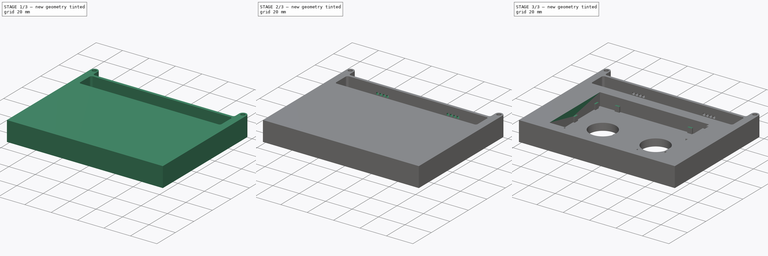
[diagram: build sequence overview — one tinted view per stage of 3, left to right]
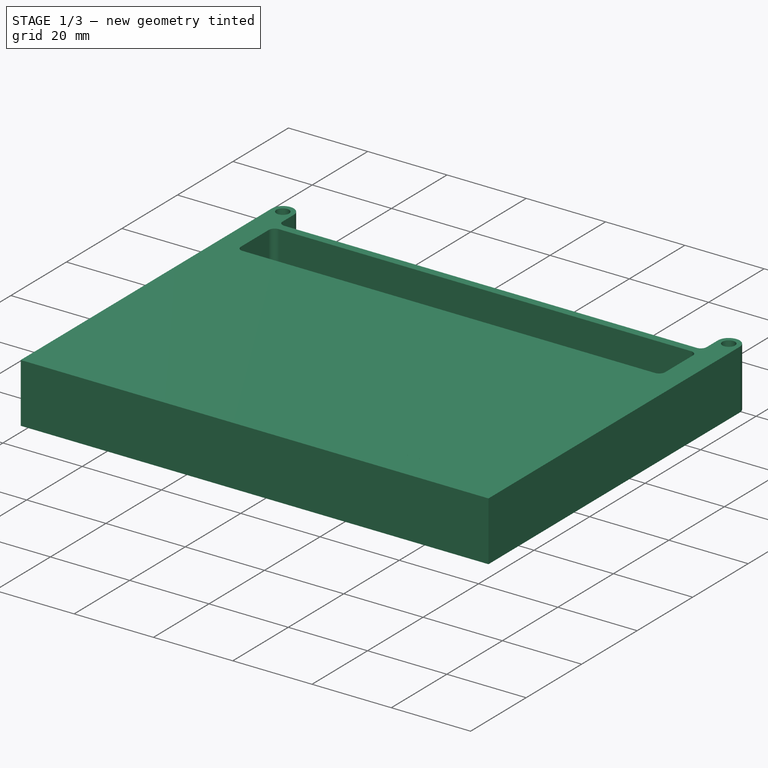
[diagram: stage 1 of 3 — iso view after this stage's code; geometry added in this stage tinted green]
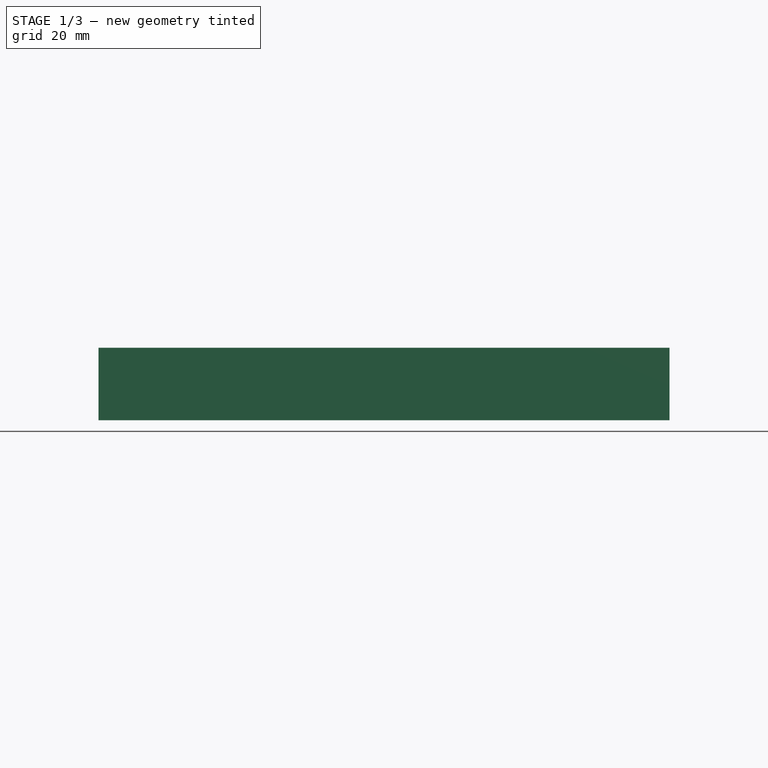
[diagram: stage 1 of 3 — front view after this stage's code; geometry added in this stage tinted green]
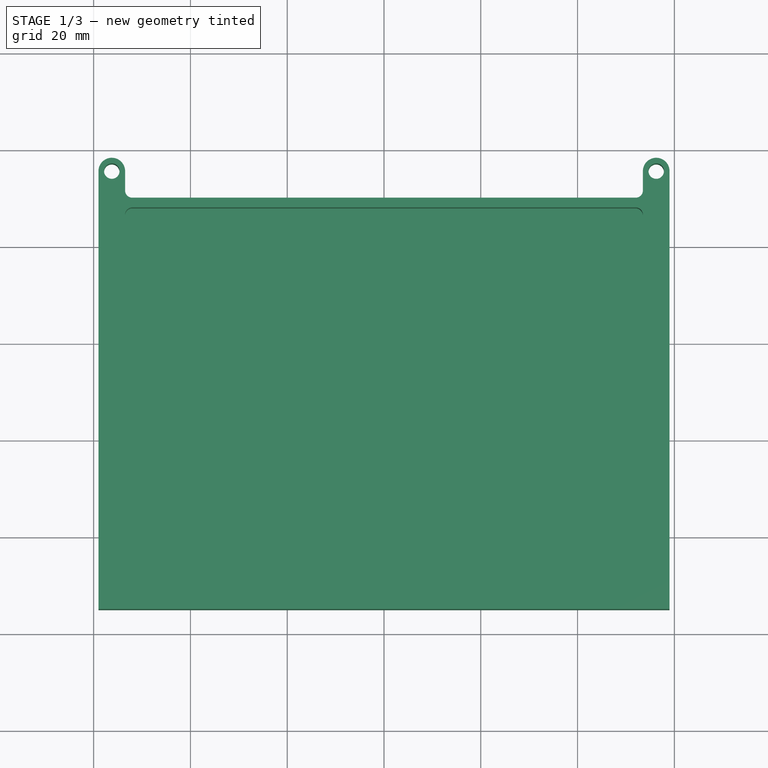
[diagram: stage 1 of 3 — top view after this stage's code; geometry added in this stage tinted green]
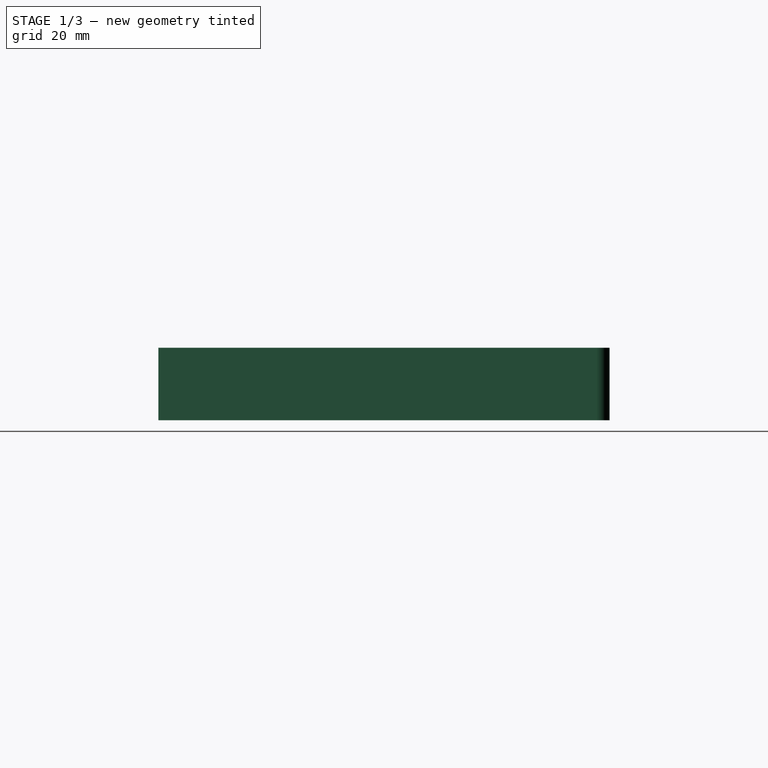
[diagram: stage 1 of 3 — right view after this stage's code; geometry added in this stage tinted green]
FCSTD DOCUMENT  (FreeCAD 0.18R15969 (Git))
Label: eternal_magnet_alignment_jig_3
License: All rights reserved
LicenseURL: http://en.wikipedia.org/wiki/All_rights_reserved
objects: Sketcher::SketchObject×7, PartDesign::Pocket×5, PartDesign::Pad×2, PartDesign::Body×2, PartDesign::Boolean×1
note: 24 computed .brp shape members not serialized (recipe doc carries the construction recipe); baked Part::Feature solids carry a one-line shape summary decoded from their .brp

FEATURE [Sketcher::SketchObject] Sketch
  MapMode = 5
  Support = -> [XY_Plane]
  sketch-geometry (21):
    g0: LineSegment StartX=-52 StartY=50 StartZ=0 EndX=52 EndY=50 EndZ=0
    g1: LineSegment StartX=59 StartY=-35 StartZ=0 EndX=-59 EndY=-35 EndZ=0
    g2: LineSegment [constr] StartX=-52 StartY=51.5 StartZ=0 EndX=0 EndY=0 EndZ=0
    g3: LineSegment [constr] StartX=52 StartY=51.5 StartZ=0 EndX=0 EndY=0 EndZ=0
    g4: Circle CenterX=-56.25 CenterY=55.5 CenterZ=0 NormalX=0 NormalY=0 NormalZ=1 AngleXU=0 Radius=1.6
    g5: Circle CenterX=56.25 CenterY=55.5 CenterZ=0 NormalX=0 NormalY=0 NormalZ=1 AngleXU=0 Radius=1.6
    g6: ArcOfCircle CenterX=-52 CenterY=51.5 CenterZ=0 NormalX=0 NormalY=0 NormalZ=1 AngleXU=0 Radius=1.5 StartAngle=3.14159 EndAngle=4.71239
    g7: ArcOfCircle CenterX=52 CenterY=51.5 CenterZ=0 NormalX=0 NormalY=0 NormalZ=1 AngleXU=0 Radius=1.5 StartAngle=4.71239 EndAngle=6.28319
    g8: LineSegment StartX=-53.5 StartY=51.5 StartZ=0 EndX=-53.5 EndY=55.5 EndZ=0
    g9: LineSegment StartX=-59 StartY=55.5 StartZ=0 EndX=-59 EndY=-35 EndZ=0
    g10: ArcOfCircle CenterX=-56.25 CenterY=55.5 CenterZ=0 NormalX=0 NormalY=0 NormalZ=1 AngleXU=0 Radius=2.75 StartAngle=1e-16 EndAngle=3.14159
    g11: LineSegment StartX=53.5 StartY=51.5 StartZ=0 EndX=53.5 EndY=55.5 EndZ=0
    g12: LineSegment StartX=59 StartY=55.5 StartZ=0 EndX=59 EndY=-35 EndZ=0
    g13: ArcOfCircle CenterX=56.25 CenterY=55.5 CenterZ=0 NormalX=0 NormalY=0 NormalZ=1 AngleXU=0 Radius=2.75 StartAngle=1.3e-15 EndAngle=3.14159
    g14: LineSegment [constr] StartX=-41.25 StartY=-27.25 StartZ=0 EndX=41.25 EndY=-27.25 EndZ=0
    g15: LineSegment [constr] StartX=41.25 StartY=-27.25 StartZ=0 EndX=41.25 EndY=27.25 EndZ=0
    g16: LineSegment [constr] StartX=41.25 StartY=27.25 StartZ=0 EndX=-41.25 EndY=27.25 EndZ=0
    g17: LineSegment [constr] StartX=-41.25 StartY=27.25 StartZ=0 EndX=-41.25 EndY=-27.25 EndZ=0
    g18: LineSegment [constr] StartX=-41.25 StartY=27.25 StartZ=0 EndX=0 EndY=-3.6e-15 EndZ=0
    g19: LineSegment [constr] StartX=0 StartY=0 StartZ=0 EndX=41.25 EndY=27.25 EndZ=0
    g20: LineSegment [constr] StartX=0 StartY=0 StartZ=0 EndX=-41.25 EndY=-27.25 EndZ=0
  constraints (52):
    c: Horizontal(g0)
    c: Horizontal(g1)
    c: Coincident(g2,g-1)
    c: Coincident(g3,g-1)
    c: Equal(g2,g3)
    c: Radius(g4) = 1.6
    c: Equal(g4,g5)
    c: Tangent(g0,g6) = -1.5708
    c: Tangent(g0,g7) = -1.5708
    c: Coincident(g2,g6)
    c: Coincident(g3,g7)
    c: Radius(g7) = 1.5
    c: Equal(g7,g6)
    c: DistanceY(g0,g4) = 5.5
    c: Vertical(g8)
    c: Coincident(g9,g1)
    c: Vertical(g9)
    c: Coincident(g10,g4)
    c: Tangent(g10,g8) = -1.5708
    c: Tangent(g10,g9) = -1.5708
    c: DistanceX(g6,g7) = 107
    c: DistanceX(g9,g8) = 5.5
    c: Vertical(g11)
    c: Coincident(g12,g1)
    c: Vertical(g12)
    c: Coincident(g13,g5)
    c: Tangent(g13,g11) = 1.5708
    c: Tangent(g13,g12) = 1.5708
    c: Equal(g13,g10)
    c: Tangent(g8,g6) = 1.5708
    c: Tangent(g11,g7) = -1.5708
    c: Equal(g11,g8)
    c: Coincident(g14,g15)
    c: Coincident(g15,g16)
    c: Coincident(g16,g17)
    c: Coincident(g17,g14)
    c: Horizontal(g14)
    c: Horizontal(g16)
    c: Vertical(g15)
    c: Vertical(g17)
    c: DistanceY(g17,g17) = 54.5
    c: DistanceX(g16,g16) = 82.5
    c: Coincident(g18,g16)
    c: Coincident(g18,g-1)
    c: Coincident(g19,g-1)
    c: Coincident(g19,g15)
    c: Coincident(g20,g-1)
    c: Coincident(g20,g14)
    c: Equal(g18,g19)
    c: Equal(g19,g20)
    c: DistanceY(g1,g-1) = 35
    c: DistanceY(g-1,g0) = 50
FEATURE [PartDesign::Pad] Pad
  Length = 15
  Length2 = 100
  Profile = -> Sketch
  Refine = true
  Reversed = true
  Type = 0
FEATURE [Sketcher::SketchObject] Sketch001
  ExternalGeometry = -> [Pad]
  MapMode = 5
  Support = -> [Pad]
  sketch-geometry (10):
    g0: LineSegment StartX=-52 StartY=48 StartZ=0 EndX=52 EndY=48 EndZ=0
    g1: LineSegment StartX=53.5 StartY=46.5 StartZ=0 EndX=53.5 EndY=36.5 EndZ=0
    g2: LineSegment StartX=52 StartY=35 StartZ=0 EndX=-52 EndY=35 EndZ=0
    g3: LineSegment StartX=-53.5 StartY=36.5 StartZ=0 EndX=-53.5 EndY=46.5 EndZ=0
    g4: ArcOfCircle CenterX=-52 CenterY=46.5 CenterZ=0 NormalX=0 NormalY=0 NormalZ=1 AngleXU=0 Radius=1.5 StartAngle=1.5708 EndAngle=3.14159
    g5: ArcOfCircle CenterX=52 CenterY=46.5 CenterZ=0 NormalX=0 NormalY=0 NormalZ=1 AngleXU=0 Radius=1.5 StartAngle=-9e-16 EndAngle=1.5708
    g6: ArcOfCircle CenterX=52 CenterY=36.5 CenterZ=0 NormalX=0 NormalY=0 NormalZ=1 AngleXU=0 Radius=1.5 StartAngle=4.71239 EndAngle=6.28319
    g7: ArcOfCircle CenterX=-52 CenterY=36.5 CenterZ=0 NormalX=0 NormalY=0 NormalZ=1 AngleXU=0 Radius=1.5 StartAngle=3.14159 EndAngle=4.71239
    g8: LineSegment [constr] StartX=-52 StartY=50 StartZ=0 EndX=-52 EndY=48 EndZ=0
    g9: LineSegment [constr] StartX=52 StartY=50 StartZ=0 EndX=52 EndY=48 EndZ=0
  constraints (24):
    c: Horizontal(g2)
    c: Vertical(g1)
    c: Vertical(g3)
    c: Tangent(g3,g4) = 1.5708
    c: Tangent(g0,g4) = 1.5708
    c: Tangent(g0,g5) = 1.5708
    c: Tangent(g1,g5) = 1.5708
    c: Tangent(g1,g6) = 1.5708
    c: Tangent(g2,g6) = 1.5708
    c: Tangent(g2,g7) = 1.5708
    c: Tangent(g3,g7) = 1.5708
    c: Radius(g7) = 1.5
    c: Equal(g7,g4)
    c: Equal(g7,g5)
    c: Equal(g7,g6)
    c: Coincident(g8,g-3)
    c: Coincident(g8,g0)
    c: Coincident(g9,g-3)
    c: Coincident(g9,g0)
    c: Equal(g8,g9)
    c: Vertical(g8)
    c: Vertical(g9)
    c: DistanceY(g8,g8) = 2
    c: DistanceY(g7,g4) = 10
FEATURE [PartDesign::Pocket] Pocket
  BaseFeature = -> Pad
  Length = 13
  Length2 = 100
  Profile = -> Sketch001
  Refine = true
  Type = 0
FEATURE [Sketcher::SketchObject] Sketch006
  MapMode = 5
  Support = -> [XY_Plane001]
  sketch-geometry (85):
    g0: LineSegment [constr] StartX=-41.25 StartY=-27.25 StartZ=0 EndX=41.25 EndY=-27.25 EndZ=0
    g1: LineSegment [constr] StartX=41.25 StartY=-27.25 StartZ=0 EndX=41.25 EndY=27.25 EndZ=0
    g2: LineSegment [constr] StartX=41.25 StartY=27.25 StartZ=0 EndX=-41.25 EndY=27.25 EndZ=0
    g3: LineSegment [constr] StartX=-41.25 StartY=27.25 StartZ=0 EndX=-41.25 EndY=-27.25 EndZ=0
    g4: LineSegment [constr] StartX=-41.25 StartY=27.25 StartZ=0 EndX=0 EndY=0 EndZ=0
    g5: LineSegment [constr] StartX=0 StartY=0 StartZ=0 EndX=41.25 EndY=27.25 EndZ=0
    g6: LineSegment [constr] StartX=0 StartY=0 StartZ=0 EndX=-41.25 EndY=-27.25 EndZ=0
    g7: LineSegment StartX=-41.25 StartY=27.25 StartZ=0 EndX=-29.1 EndY=27.25 EndZ=0
    g8: LineSegment StartX=-29.1 StartY=27.25 StartZ=0 EndX=-29.3 EndY=26.05 EndZ=0
    g9: LineSegment StartX=-29.3 StartY=26.05 StartZ=0 EndX=-25.7 EndY=26.05 EndZ=0
    g10: LineSegment StartX=-25.7 StartY=26.05 StartZ=0 EndX=-25.9 EndY=27.25 EndZ=0
    g11: LineSegment StartX=-25.9 StartY=27.25 StartZ=0 EndX=25.9 EndY=27.25 EndZ=0
    g12: LineSegment StartX=25.9 StartY=27.25 StartZ=0 EndX=25.7 EndY=26.05 EndZ=0
    g13: LineSegment StartX=25.7 StartY=26.05 StartZ=0 EndX=29.3 EndY=26.05 EndZ=0
    g14: LineSegment StartX=29.3 StartY=26.05 StartZ=0 EndX=29.1 EndY=27.25 EndZ=0
    g15: LineSegment StartX=29.1 StartY=27.25 StartZ=0 EndX=41.25 EndY=27.25 EndZ=0
    g16: LineSegment StartX=-41.25 StartY=27.25 StartZ=0 EndX=-41.25 EndY=24.1 EndZ=0
    g17: LineSegment StartX=-41.25 StartY=24.1 StartZ=0 EndX=-40.05 EndY=24.3 EndZ=0
    g18: LineSegment StartX=-40.05 StartY=24.3 StartZ=0 EndX=-40.05 EndY=20.7 EndZ=0
    g19: LineSegment StartX=-40.05 StartY=20.7 StartZ=0 EndX=-41.25 EndY=20.9 EndZ=0
    g20: LineSegment StartX=-41.25 StartY=20.9 StartZ=0 EndX=-41.25 EndY=1.6 EndZ=0
    g21: LineSegment StartX=-41.25 StartY=1.6 StartZ=0 EndX=-40.05 EndY=1.8 EndZ=0
    g22: LineSegment StartX=-40.05 StartY=1.8 StartZ=0 EndX=-40.05 EndY=-1.8 EndZ=0
    g23: LineSegment StartX=-40.05 StartY=-1.8 StartZ=0 EndX=-41.25 EndY=-1.6 EndZ=0
    g24: LineSegment [constr] StartX=-40.05 StartY=-1.8 StartZ=0 EndX=-41.25 EndY=1.6 EndZ=0
    g25: LineSegment [constr] StartX=-40.05 StartY=20.7 StartZ=0 EndX=-41.25 EndY=24.1 EndZ=0
    g26: LineSegment [constr] StartX=-29.3 StartY=26.05 StartZ=0 EndX=-25.9 EndY=27.25 EndZ=0
    g27: LineSegment [constr] StartX=25.7 StartY=26.05 StartZ=0 EndX=29.1 EndY=27.25 EndZ=0
    g28: LineSegment StartX=-41.25 StartY=-1.6 StartZ=0 EndX=-41.25 EndY=-20.9 EndZ=0
    g29: LineSegment StartX=-41.25 StartY=-20.9 StartZ=0 EndX=-40.05 EndY=-20.7 EndZ=0
    g30: LineSegment StartX=-40.05 StartY=-20.7 StartZ=0 EndX=-40.05 EndY=-24.3 EndZ=0
    g31: LineSegment StartX=-40.05 StartY=-24.3 StartZ=0 EndX=-41.25 EndY=-24.1 EndZ=0
    g32: LineSegment StartX=-41.25 StartY=-24.1 StartZ=0 EndX=-41.25 EndY=-27.25 EndZ=0
    g33: LineSegment [constr] StartX=-41.25 StartY=-20.9 StartZ=0 EndX=-40.05 EndY=-24.3 EndZ=0
    g34: LineSegment [constr] StartX=0 StartY=0 StartZ=0 EndX=-40.05 EndY=1.8 EndZ=0
    g35: LineSegment [constr] StartX=0 StartY=0 StartZ=0 EndX=-40.05 EndY=-1.8 EndZ=0
    g36: LineSegment [constr] StartX=-40.05 StartY=20.7 StartZ=0 EndX=0 EndY=22.5 EndZ=0
    g37: LineSegment [constr] StartX=0 StartY=22.5 StartZ=0 EndX=-40.05 EndY=24.3 EndZ=0
    g38: LineSegment [constr] StartX=-40.05 StartY=-20.7 StartZ=0 EndX=0 EndY=-22.5 EndZ=0
    g39: LineSegment [constr] StartX=-40.05 StartY=-24.3 StartZ=0 EndX=0 EndY=-22.5 EndZ=0
    g40: LineSegment [constr] StartX=0 StartY=-22.5 StartZ=0 EndX=0 EndY=0 EndZ=0
    g41: LineSegment [constr] StartX=0 StartY=0 StartZ=0 EndX=0 EndY=22.5 EndZ=0
    g42: LineSegment [constr] StartX=-29.3 StartY=26.05 StartZ=0 EndX=-27.5 EndY=-27.25 EndZ=0
    g43: LineSegment [constr] StartX=-27.5 StartY=-27.25 StartZ=0 EndX=-25.7 EndY=26.05 EndZ=0
    g44: LineSegment [constr] StartX=29.3 StartY=26.05 StartZ=0 EndX=27.5 EndY=-27.25 EndZ=0
    g45: LineSegment [constr] StartX=25.7 StartY=26.05 StartZ=0 EndX=27.5 EndY=-27.25 EndZ=0
    g46: LineSegment [constr] StartX=-27.5 StartY=-27.25 StartZ=0 EndX=0 EndY=0 EndZ=0
    g47: LineSegment [constr] StartX=0 StartY=0 StartZ=0 EndX=27.5 EndY=-27.25 EndZ=0
    g48: LineSegment StartX=41.25 StartY=27.25 StartZ=0 EndX=41.25 EndY=24.35 EndZ=0
    g49: LineSegment StartX=41.25 StartY=24.35 StartZ=0 EndX=42.85 EndY=24.6 EndZ=0
    g50: LineSegment StartX=42.85 StartY=24.6 StartZ=0 EndX=42.85 EndY=20.4 EndZ=0
    g51: LineSegment StartX=42.85 StartY=20.4 StartZ=0 EndX=41.25 EndY=20.65 EndZ=0
    g52: LineSegment StartX=41.25 StartY=20.65 StartZ=0 EndX=41.25 EndY=1.85 EndZ=0
    g53: LineSegment StartX=41.25 StartY=1.85 StartZ=0 EndX=42.85 EndY=2.1 EndZ=0
    g54: LineSegment StartX=42.85 StartY=2.1 StartZ=0 EndX=42.85 EndY=-2.1 EndZ=0
    g55: LineSegment StartX=42.85 StartY=-2.1 StartZ=0 EndX=41.25 EndY=-1.85 EndZ=0
    g56: LineSegment StartX=41.25 StartY=-1.85 StartZ=0 EndX=41.25 EndY=-20.65 EndZ=0
    g57: LineSegment StartX=41.25 StartY=-20.65 StartZ=0 EndX=42.85 EndY=-20.4 EndZ=0
    g58: LineSegment StartX=42.85 StartY=-20.4 StartZ=0 EndX=42.85 EndY=-24.6 EndZ=0
    g59: LineSegment StartX=42.85 StartY=-24.6 StartZ=0 EndX=41.25 EndY=-24.35 EndZ=0
    g60: LineSegment StartX=41.25 StartY=-24.35 StartZ=0 EndX=41.25 EndY=-27.25 EndZ=0
    g61: LineSegment StartX=-41.25 StartY=-27.25 StartZ=0 EndX=-29.35 EndY=-27.25 EndZ=0
    g62: LineSegment StartX=-29.35 StartY=-27.25 StartZ=0 EndX=-29.6 EndY=-28.85 EndZ=0
    g63: LineSegment StartX=-29.6 StartY=-28.85 StartZ=0 EndX=-25.4 EndY=-28.85 EndZ=0
    g64: LineSegment StartX=-25.4 StartY=-28.85 StartZ=0 EndX=-25.65 EndY=-27.25 EndZ=0
    g65: LineSegment StartX=-25.65 StartY=-27.25 StartZ=0 EndX=25.65 EndY=-27.25 EndZ=0
    g66: LineSegment StartX=25.65 StartY=-27.25 StartZ=0 EndX=25.4 EndY=-28.85 EndZ=0
    g67: LineSegment StartX=25.4 StartY=-28.85 StartZ=0 EndX=29.6 EndY=-28.85 EndZ=0
    g68: LineSegment StartX=29.6 StartY=-28.85 StartZ=0 EndX=29.35 EndY=-27.25 EndZ=0
    g69: LineSegment StartX=29.35 StartY=-27.25 StartZ=0 EndX=41.25 EndY=-27.25 EndZ=0
    g70: LineSegment [constr] StartX=-29.6 StartY=-28.85 StartZ=0 EndX=-27.5 EndY=-27.25 EndZ=0
    g71: LineSegment [constr] StartX=-27.5 StartY=-27.25 StartZ=0 EndX=-25.4 EndY=-28.85 EndZ=0
    g72: LineSegment [constr] StartX=25.4 StartY=-28.85 StartZ=0 EndX=27.5 EndY=-27.25 EndZ=0
    g73: LineSegment [constr] StartX=27.5 StartY=-27.25 StartZ=0 EndX=29.6 EndY=-28.85 EndZ=0
    g74: LineSegment [constr] StartX=42.85 StartY=-20.4 StartZ=0 EndX=0 EndY=-22.5 EndZ=0
    g75: LineSegment [constr] StartX=0 StartY=-22.5 StartZ=0 EndX=42.85 EndY=-24.6 EndZ=0
    g76: LineSegment [constr] StartX=42.85 StartY=-2.1 StartZ=0 EndX=0 EndY=0 EndZ=0
    g77: LineSegment [constr] StartX=0 StartY=0 StartZ=0 EndX=42.85 EndY=2.1 EndZ=0
    g78: LineSegment [constr] StartX=42.85 StartY=20.4 StartZ=0 EndX=0 EndY=22.5 EndZ=0
    g79: LineSegment [constr] StartX=0 StartY=22.5 StartZ=0 EndX=42.85 EndY=24.6 EndZ=0
    g80: LineSegment [constr] StartX=-29.35 StartY=-27.25 StartZ=0 EndX=-25.4 EndY=-28.85 EndZ=0
    g81: LineSegment [constr] StartX=25.65 StartY=-27.25 StartZ=0 EndX=29.6 EndY=-28.85 EndZ=0
    g82: LineSegment [constr] StartX=41.25 StartY=-24.35 StartZ=0 EndX=42.85 EndY=-20.4 EndZ=0
    g83: LineSegment [constr] StartX=41.25 StartY=-1.85 StartZ=0 EndX=42.85 EndY=2.1 EndZ=0
    g84: LineSegment [constr] StartX=41.25 StartY=20.65 StartZ=0 EndX=42.85 EndY=24.6 EndZ=0
  constraints (226):
    c: Coincident(g0,g1)
    c: Coincident(g1,g2)
    c: Coincident(g2,g3)
    c: Coincident(g3,g0)
    c: Horizontal(g0)
    c: Horizontal(g2)
    c: Vertical(g1)
    c: Vertical(g3)
    c: DistanceX(g2,g2) = 82.5
    c: DistanceY(g1,g1) = 54.5
    c: Coincident(g4,g2)
    c: Coincident(g5,g4)
    c: Coincident(g5,g1)
    c: Coincident(g6,g4)
    c: Coincident(g6,g0)
    c: Equal(g6,g4)
    c: Equal(g4,g5)
    c: Coincident(g2,g7)
    c: Coincident(g7,g8)
    c: Coincident(g8,g9)
    c: Horizontal(g9)
    c: Coincident(g9,g10)
    c: Coincident(g10,g11)
    c: Coincident(g11,g12)
    c: Coincident(g12,g13)
    c: Horizontal(g13)
    c: Coincident(g13,g14)
    c: Coincident(g14,g15)
    c: Coincident(g15,g1)
    c: PointOnObject(g14,g2)
    c: PointOnObject(g11,g2)
    c: PointOnObject(g10,g2)
    c: PointOnObject(g7,g2)
    c: Equal(g8,g10)
    c: Equal(g12,g14)
    c: Coincident(g7,g16)
    c: Coincident(g16,g17)
    c: Coincident(g17,g18)
    c: Vertical(g18)
    c: Coincident(g18,g19)
    c: Coincident(g19,g20)
    c: Coincident(g20,g21)
    c: Coincident(g21,g22)
    c: Vertical(g22)
    c: Coincident(g22,g23)
    c: PointOnObject(g23,g3)
    c: PointOnObject(g20,g3)
    c: PointOnObject(g19,g3)
    c: PointOnObject(g16,g3)
    c: Equal(g8,g17)
    c: Equal(g17,g19)
    c: Equal(g19,g21)
    c: Equal(g21,g23)
    c: Equal(g22,g18)
    c: Equal(g18,g9)
    c: Equal(g9,g13)
    c: Coincident(g24,g22)
    c: Coincident(g24,g20)
    c: Coincident(g25,g18)
    c: Coincident(g25,g16)
    c: Coincident(g26,g8)
    c: Coincident(g26,g10)
    c: Coincident(g27,g12)
    c: Coincident(g27,g14)
    c: Equal(g26,g27)
    c: Equal(g27,g25)
    c: Equal(g25,g24)
    c: Coincident(g23,g28)
    c: Coincident(g28,g29)
    c: Coincident(g29,g30)
    c: Vertical(g30)
    c: Coincident(g30,g31)
    c: Coincident(g31,g32)
    c: Coincident(g32,g0)
    c: PointOnObject(g31,g3)
    c: PointOnObject(g28,g3)
    c: Equal(g30,g22)
    c: Equal(g29,g31)
    c: Equal(g31,g23)
    c: Coincident(g33,g28)
    c: Coincident(g33,g30)
    c: Equal(g33,g24)
    c: Coincident(g34,g4)
    c: Coincident(g34,g21)
    c: Coincident(g35,g4)
    c: Coincident(g35,g22)
    c: Coincident(g36,g18)
    c: PointOnObject(g36,g-2)
    c: Coincident(g37,g36)
    c: Coincident(g37,g17)
    c: Coincident(g38,g29)
    c: PointOnObject(g38,g-2)
    c: Coincident(g39,g30)
    c: Coincident(g39,g38)
    c: Coincident(g40,g38)
    c: Coincident(g40,g4)
    c: Coincident(g41,g4)
    c: Coincident(g41,g36)
    c: Equal(g41,g40)
    c: DistanceY(g38,g36) = 45
    c: DistanceY(g19,g16) = 3.2
    c: DistanceY(g18,g18) = 3.6
    c: DistanceX(g19,g19) = 1.2
    c: Coincident(g42,g8)
    c: PointOnObject(g42,g0)
    c: Coincident(g43,g42)
    c: Coincident(g43,g9)
    c: Coincident(g44,g13)
    c: PointOnObject(g44,g0)
    c: Coincident(g45,g12)
    c: Coincident(g45,g44)
    c: Equal(g44,g45)
    c: Equal(g45,g42)
    c: Equal(g42,g43)
    c: Coincident(g46,g42)
    c: Coincident(g46,g4)
    c: Coincident(g47,g4)
    c: Coincident(g47,g44)
    c: Equal(g46,g47)
    c: DistanceX(g42,g44) = 55
    c: Coincident(g15,g48)
    c: Coincident(g48,g49)
    c: Coincident(g49,g50)
    c: Vertical(g50)
    c: Coincident(g50,g51)
    c: Coincident(g51,g52)
    c: Coincident(g52,g53)
    c: Coincident(g53,g54)
    c: Vertical(g54)
    c: Coincident(g54,g55)
    c: Coincident(g55,g56)
    c: Coincident(g56,g57)
    c: Coincident(g57,g58)
    c: Vertical(g58)
    c: Coincident(g58,g59)
    c: Coincident(g59,g60)
    c: Coincident(g60,g0)
    c: PointOnObject(g56,g1)
    c: PointOnObject(g59,g1)
    c: PointOnObject(g55,g1)
    c: PointOnObject(g52,g1)
    c: PointOnObject(g51,g1)
    c: PointOnObject(g48,g1)
    c: Coincident(g32,g61)
    c: Coincident(g61,g62)
    c: Coincident(g62,g63)
    c: Horizontal(g63)
    c: Coincident(g63,g64)
    c: Coincident(g65,g66)
    c: Coincident(g66,g67)
    c: Horizontal(g67)
    c: Coincident(g67,g68)
    c: Coincident(g68,g69)
    c: Coincident(g69,g60)
    c: PointOnObject(g61,g0)
    c: PointOnObject(g64,g0)
    c: PointOnObject(g65,g0)
    c: PointOnObject(g68,g0)
    c: Equal(g67,g58)
    c: Equal(g58,g54)
    c: Equal(g54,g50)
    c: Equal(g64,g62)
    c: Equal(g66,g68)
    c: Equal(g68,g59)
    c: Equal(g59,g57)
    c: Equal(g57,g55)
    c: Equal(g55,g53)
    c: Equal(g53,g51)
    c: Equal(g51,g49)
    c: Coincident(g70,g62)
    c: Coincident(g70,g42)
    c: Coincident(g71,g42)
    c: Coincident(g71,g63)
    c: Coincident(g65,g64)
    c: Coincident(g72,g66)
    c: Coincident(g72,g44)
    c: Coincident(g73,g44)
    c: Coincident(g73,g67)
    c: Coincident(g74,g57)
    c: Coincident(g74,g38)
    c: Coincident(g75,g38)
    c: Coincident(g75,g58)
    c: Coincident(g76,g54)
    c: Coincident(g76,g4)
    c: Coincident(g77,g4)
    c: Coincident(g77,g53)
    c: Coincident(g78,g50)
    c: Coincident(g78,g36)
    c: Coincident(g79,g36)
    c: Coincident(g79,g49)
    c: Equal(g75,g74)
    c: Equal(g76,g77)
    c: Equal(g78,g79)
    c: Equal(g70,g71)
    c: Equal(g72,g73)
    c: Equal(g63,g67)
    c: DistanceY(g62,g61) = 1.6
    c: Equal(g62,g64)
    c: Equal(g64,g66)
    c: Equal(g66,g68)
    c: Equal(g68,g59)
    c: Equal(g59,g57)
    c: Equal(g57,g55)
    c: Equal(g55,g53)
    c: Equal(g53,g51)
    c: Equal(g51,g49)
    c: Coincident(g80,g61)
    c: Coincident(g80,g63)
    c: Coincident(g81,g65)
    c: Coincident(g81,g67)
    c: Coincident(g82,g59)
    c: Coincident(g82,g57)
    c: Coincident(g83,g55)
    c: Coincident(g83,g53)
    c: Coincident(g84,g51)
    c: Coincident(g84,g49)
    c: Equal(g84,g83)
    c: Equal(g83,g82)
    c: Equal(g82,g81)
    c: Equal(g81,g80)
    c: DistanceX(g63,g63) = 4.2
    c: DistanceX(g61,g64) = 3.7
    c: Equal(g35,g34)
    c: Equal(g37,g36)
    c: Equal(g39,g38)
    c: Coincident(g4,g-1)
FEATURE [PartDesign::Pad] Pad001
  Length = 9.5
  Length2 = 100
  Profile = -> Sketch006
  Refine = true
  Reversed = true
  Type = 0
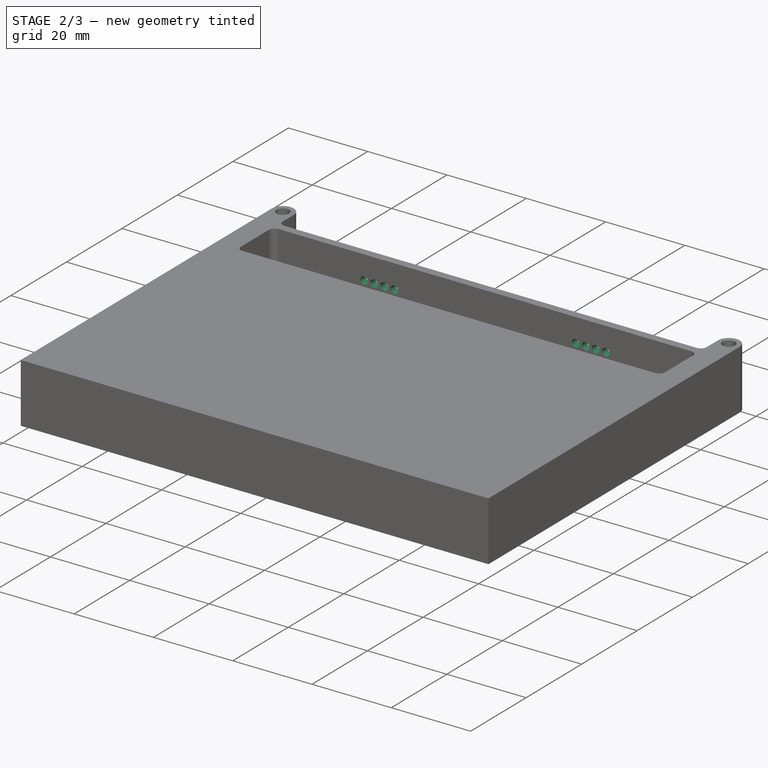
[diagram: stage 2 of 3 — iso view after this stage's code; geometry added in this stage tinted green]
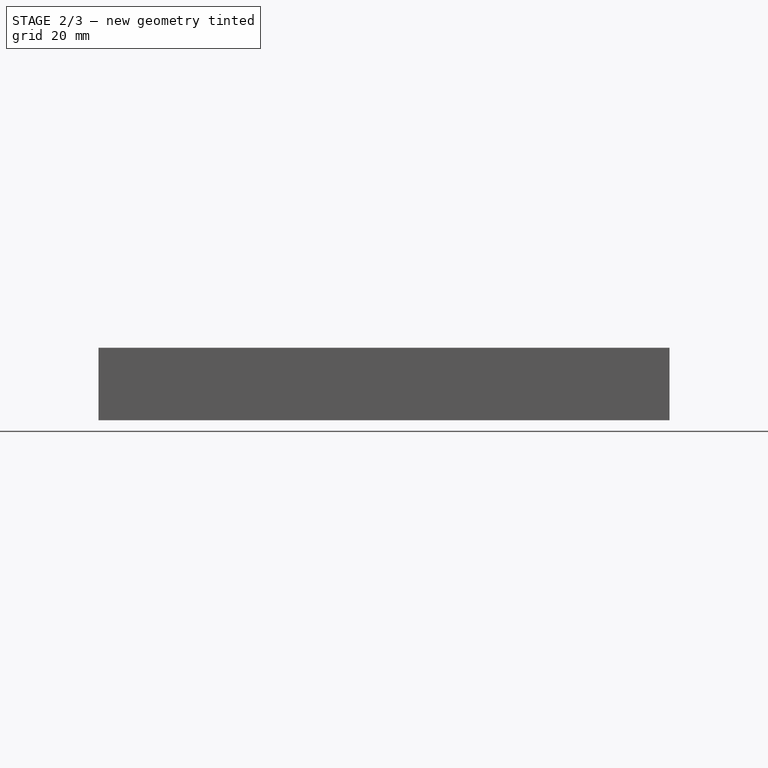
[diagram: stage 2 of 3 — front view after this stage's code; geometry added in this stage tinted green]
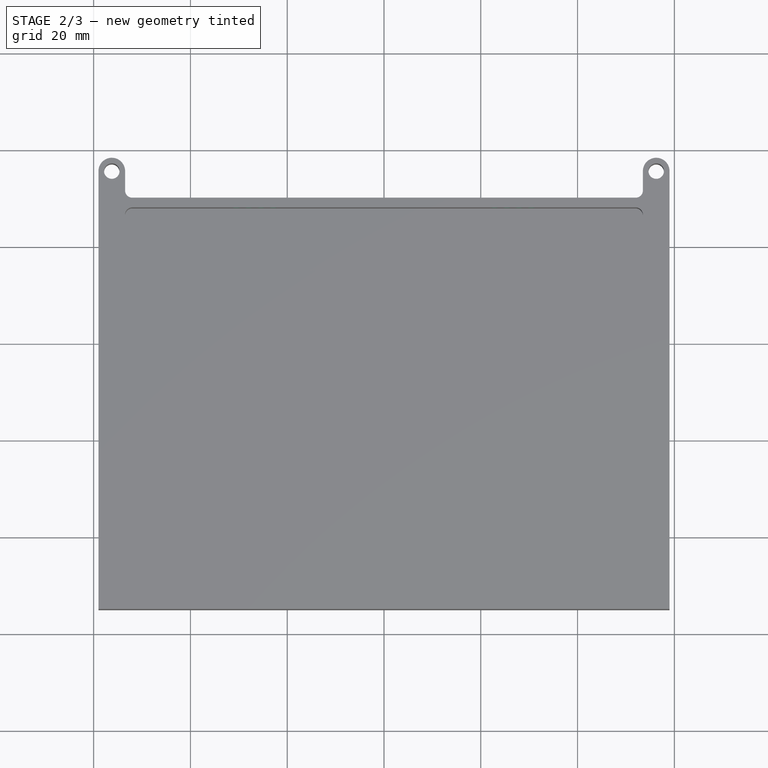
[diagram: stage 2 of 3 — top view after this stage's code; geometry added in this stage tinted green]
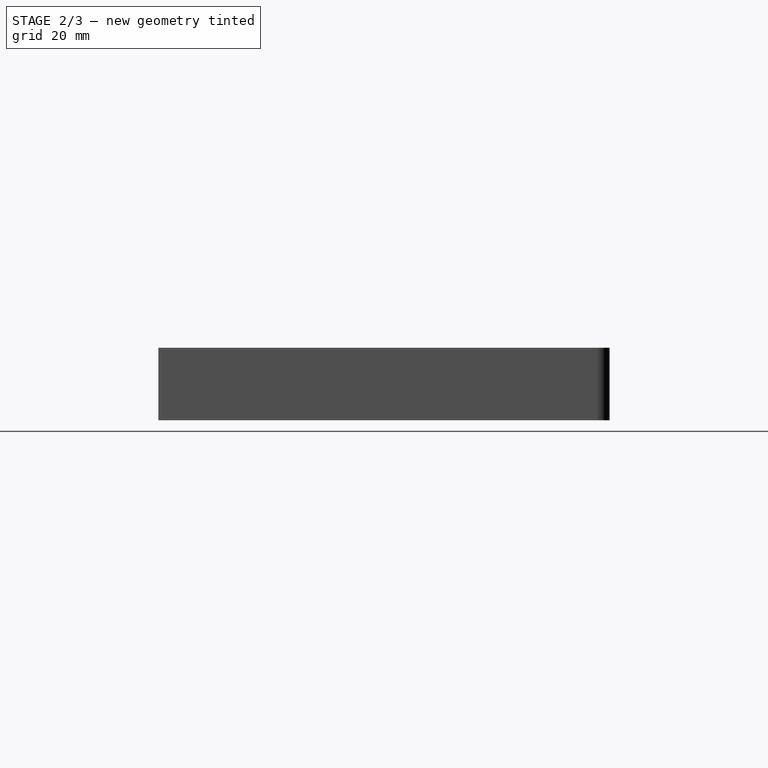
[diagram: stage 2 of 3 — right view after this stage's code; geometry added in this stage tinted green]
FEATURE [Sketcher::SketchObject] Sketch003
  MapMode = 5
  Support = -> [Pocket]
  sketch-geometry (2):
    g0: Circle CenterX=-20 CenterY=0 CenterZ=0 NormalX=0 NormalY=0 NormalZ=1 AngleXU=0 Radius=10
    g1: Circle CenterX=20 CenterY=0 CenterZ=0 NormalX=0 NormalY=0 NormalZ=1 AngleXU=0 Radius=10
  constraints (6):
    c: PointOnObject(g0,g-1)
    c: PointOnObject(g1,g-1)
    c: DistanceX(g0,g-1) = 20
    c: DistanceX(g-1,g1) = 20
    c: Radius(g0) = 10
    c: Equal(g0,g1)
FEATURE [PartDesign::Pocket] Pocket001
  BaseFeature = -> Pocket
  Length = 5
  Length2 = 100
  Profile = -> Sketch003
  Refine = true
  Type = 1
FEATURE [Sketcher::SketchObject] Sketch004
  MapMode = 5
  Placement = pos=(0,48,0) rot=(1,0,0;1.5708rad)
  Support = -> [Pocket001]
  expr: Constraints[31] = 2.54 * 3
  sketch-geometry (18):
    g0: Circle CenterX=-30.48 CenterY=-6 CenterZ=0 NormalX=0 NormalY=0 NormalZ=1 AngleXU=0 Radius=0.95
    g1: Circle CenterX=-27.94 CenterY=-6 CenterZ=0 NormalX=0 NormalY=0 NormalZ=1 AngleXU=0 Radius=0.95
    g2: Circle CenterX=-25.4 CenterY=-6 CenterZ=0 NormalX=0 NormalY=0 NormalZ=1 AngleXU=0 Radius=0.95
    g3: Circle CenterX=-22.86 CenterY=-6 CenterZ=0 NormalX=0 NormalY=0 NormalZ=1 AngleXU=0 Radius=0.95
    g4: Circle CenterX=22.86 CenterY=-6 CenterZ=0 NormalX=0 NormalY=0 NormalZ=1 AngleXU=0 Radius=0.95
    g5: Circle CenterX=25.4 CenterY=-6 CenterZ=0 NormalX=0 NormalY=0 NormalZ=1 AngleXU=0 Radius=0.95
    g6: Circle CenterX=27.94 CenterY=-6 CenterZ=0 NormalX=0 NormalY=0 NormalZ=1 AngleXU=0 Radius=0.95
    g7: Circle CenterX=30.48 CenterY=-6 CenterZ=0 NormalX=0 NormalY=0 NormalZ=1 AngleXU=0 Radius=0.95
    g8: LineSegment [constr] StartX=-30.48 StartY=-6 StartZ=0 EndX=-27.94 EndY=-6 EndZ=0
    g9: LineSegment [constr] StartX=-27.94 StartY=-6 StartZ=0 EndX=-25.4 EndY=-6 EndZ=0
    g10: LineSegment [constr] StartX=-25.4 StartY=-6 StartZ=0 EndX=-22.86 EndY=-6 EndZ=0
    g11: LineSegment [constr] StartX=22.86 StartY=-6 StartZ=0 EndX=25.4 EndY=-6 EndZ=0
    g12: LineSegment [constr] StartX=25.4 StartY=-6 StartZ=0 EndX=27.94 EndY=-6 EndZ=0
    g13: LineSegment [constr] StartX=27.94 StartY=-6 StartZ=0 EndX=30.48 EndY=-6 EndZ=0
    g14: LineSegment [constr] StartX=-30.48 StartY=-6 StartZ=0 EndX=-26.67 EndY=0 EndZ=0
    g15: LineSegment [constr] StartX=-26.67 StartY=0 StartZ=0 EndX=-22.86 EndY=-6 EndZ=0
    g16: LineSegment [constr] StartX=22.86 StartY=-6 StartZ=0 EndX=26.67 EndY=0 EndZ=0
    g17: LineSegment [constr] StartX=26.67 StartY=0 StartZ=0 EndX=30.48 EndY=-6 EndZ=0
  constraints (40):
    c: Radius(g0) = 0.95
    c: Equal(g0, g1-g7) x7
    c: Coincident(g8,g0)
    c: Coincident(g8,g1)
    c: Horizontal(g8)
    c: Coincident(g9,g1)
    c: Coincident(g9,g2)
    c: Horizontal(g9)
    c: Coincident(g10,g2)
    c: Coincident(g10,g3)
    c: Horizontal(g10)
    c: Coincident(g11,g4)
    c: Coincident(g12,g5)
    c: Coincident(g12,g6)
    c: Coincident(g13,g6)
    c: Coincident(g13,g7)
    c: Horizontal(g13)
    c: Horizontal(g12)
    c: Horizontal(g11)
    c: Coincident(g11,g5)
    c: Equal(g11,g12)
    c: Equal(g12,g13)
    c: Equal(g13,g8)
    c: Equal(g8,g9)
    c: Equal(g9,g10)
    c: DistanceX(g0,g3) = 7.62
    c: Coincident(g14,g0)
    c: PointOnObject(g14,g-1)
    c: Coincident(g15,g14)
    c: Coincident(g15,g3)
    c: Coincident(g16,g4)
    c: PointOnObject(g16,g-1)
    c: Coincident(g17,g16)
    c: Coincident(g17,g7)
    c: Equal(g17,g16)
    c: Equal(g16,g15)
    c: Equal(g15,g14)
    c: DistanceX(g14,g-1) = 26.67
    c: DistanceX(g-1,g16) = 26.67
    c: DistanceY(g3,g-1) = 6
FEATURE [PartDesign::Pocket] Pocket002
  BaseFeature = -> Pocket001
  Length = 2
  Length2 = 100
  Profile = -> Sketch004
  Refine = true
  Type = 0
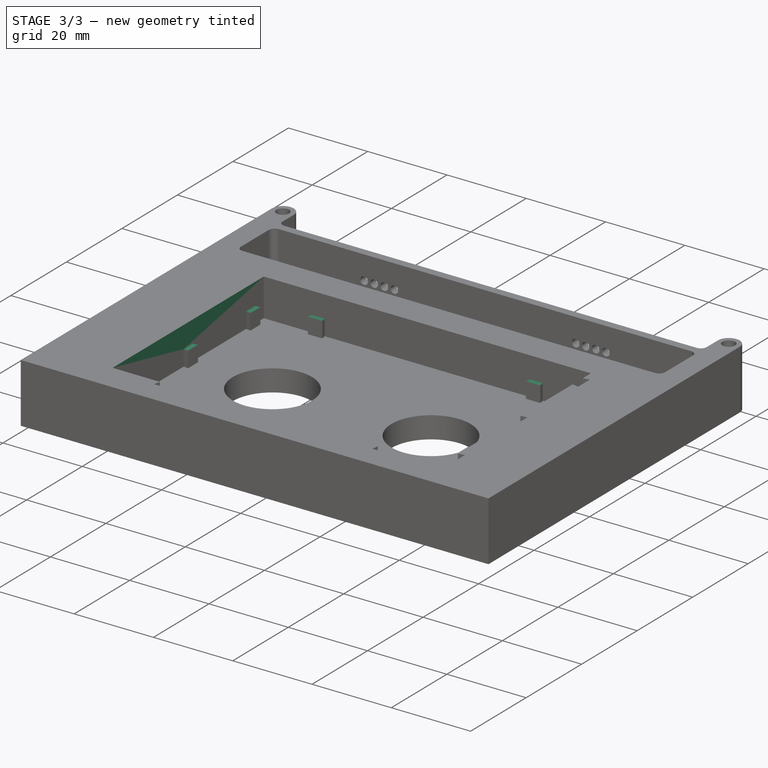
[diagram: stage 3 of 3 — iso view after this stage's code; geometry added in this stage tinted green]
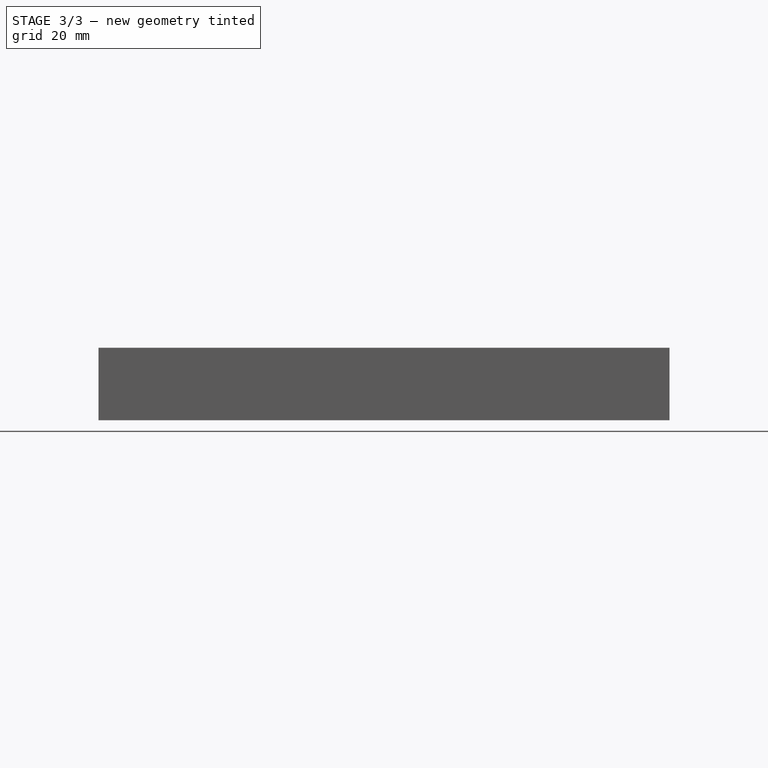
[diagram: stage 3 of 3 — front view after this stage's code; geometry added in this stage tinted green]
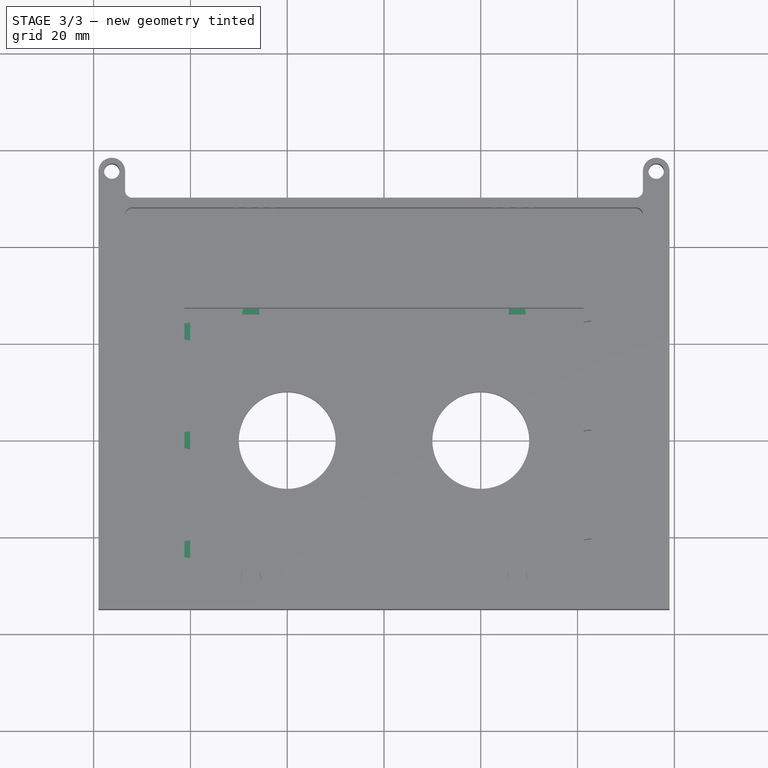
[diagram: stage 3 of 3 — top view after this stage's code; geometry added in this stage tinted green]
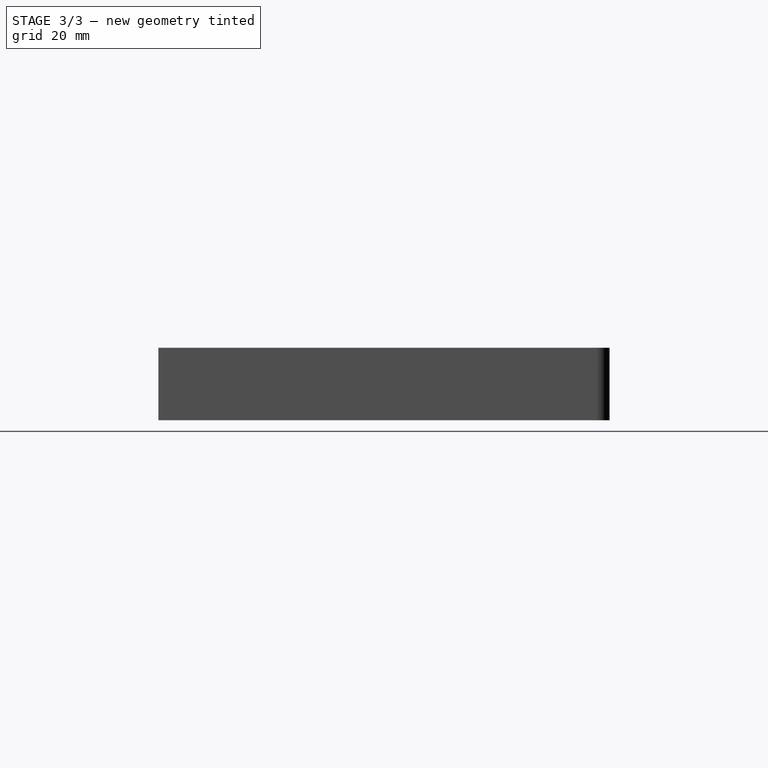
[diagram: stage 3 of 3 — right view after this stage's code; geometry added in this stage tinted green]
FEATURE [Sketcher::SketchObject] Sketch005
  MapMode = 5
  Placement = pos=(0,0,-15) rot=(1,0,0;3.14159rad)
  Support = -> [Pocket002]
  sketch-geometry (11):
    g0: Circle CenterX=-51.5 CenterY=27 CenterZ=0 NormalX=0 NormalY=0 NormalZ=1 AngleXU=0 Radius=3.8
    g1: Circle CenterX=-51.5 CenterY=-43 CenterZ=0 NormalX=0 NormalY=0 NormalZ=1 AngleXU=0 Radius=3.8
    g2: Circle CenterX=51.5 CenterY=-43 CenterZ=0 NormalX=0 NormalY=0 NormalZ=1 AngleXU=0 Radius=3.8
    g3: Circle CenterX=51.5 CenterY=27 CenterZ=0 NormalX=0 NormalY=0 NormalZ=1 AngleXU=0 Radius=3.8
    g4: LineSegment [constr] StartX=-51.5 StartY=-43 StartZ=0 EndX=51.5 EndY=-43 EndZ=0
    g5: LineSegment [constr] StartX=51.5 StartY=-43 StartZ=0 EndX=51.5 EndY=27 EndZ=0
    g6: LineSegment [constr] StartX=51.5 StartY=27 StartZ=0 EndX=-51.5 EndY=27 EndZ=0
    g7: LineSegment [constr] StartX=-51.5 StartY=27 StartZ=0 EndX=-51.5 EndY=-43 EndZ=0
    g8: LineSegment [constr] StartX=-51.5 StartY=27 StartZ=0 EndX=0 EndY=-8 EndZ=0
    g9: LineSegment [constr] StartX=0 StartY=-8 StartZ=0 EndX=51.5 EndY=27 EndZ=0
    g10: LineSegment [constr] StartX=0 StartY=-8 StartZ=0 EndX=-51.5 EndY=-43 EndZ=0
  constraints (27):
    c: Radius(g0) = 3.8
    c: Equal(g0,g3)
    c: Equal(g0,g2)
    c: Equal(g0,g1)
    c: Coincident(g4,g5)
    c: Coincident(g5,g6)
    c: Coincident(g6,g7)
    c: Coincident(g7,g4)
    c: Horizontal(g4)
    c: Horizontal(g6)
    c: Vertical(g5)
    c: Vertical(g7)
    c: Coincident(g5,g3)
    c: Coincident(g6,g0)
    c: Coincident(g4,g1)
    c: Coincident(g2,g4)
    c: Coincident(g8,g0)
    c: PointOnObject(g8,g-2)
    c: Coincident(g9,g8)
    c: Coincident(g9,g3)
    c: Coincident(g10,g8)
    c: Coincident(g10,g1)
    c: Equal(g10,g8)
    c: Equal(g8,g9)
    c: DistanceX(g6,g6) = 103
    c: DistanceY(g7,g7) = 70
    c: DistanceY(g8,g-1) = 8
FEATURE [PartDesign::Pocket] Pocket003
  BaseFeature = -> Pocket002
  Length = 0.6
  Length2 = 100
  Profile = -> Sketch005
  Refine = true
  Type = 0
FEATURE [PartDesign::Body] Body001  label="feature_breadboard"
  Group = -> [Sketch006,Pad001]
  Origin = -> Origin001
  Tip = -> Pad001
FEATURE [PartDesign::Boolean] Boolean
  BaseFeature = -> Pocket003
  Group = -> [Body001]
  Refine = true
  Type = 1
FEATURE [Sketcher::SketchObject] Sketch007
  ExternalGeometry = -> [Boolean]
  MapMode = 5
  Support = -> [Boolean]
  sketch-geometry (4):
    g0: LineSegment StartX=-41.25 StartY=27.25 StartZ=0 EndX=32.63 EndY=27.25 EndZ=0
    g1: LineSegment StartX=32.63 StartY=27.25 StartZ=0 EndX=32.63 EndY=-25.17 EndZ=0
    g2: LineSegment StartX=32.63 StartY=-25.17 StartZ=0 EndX=-41.25 EndY=-25.17 EndZ=0
    g3: LineSegment StartX=-41.25 StartY=-25.17 StartZ=0 EndX=-41.25 EndY=27.25 EndZ=0
  constraints (11):
    c: Coincident(g0,g1)
    c: Coincident(g1,g2)
    c: Coincident(g2,g3)
    c: Coincident(g3,g0)
    c: Horizontal(g0)
    c: Horizontal(g2)
    c: Vertical(g1)
    c: Vertical(g3)
    c: Coincident(g0,g-3)
    c: DistanceX(g0,g0) = 73.88
    c: DistanceY(g1,g1) = 52.42
FEATURE [PartDesign::Pocket] Pocket004
  BaseFeature = -> Boolean
  Length = 5.5
  Length2 = 100
  Profile = -> Sketch007
  Refine = true
  Type = 0
FEATURE [PartDesign::Body] Body
  Group = -> [Sketch,Pad,Sketch001,Pocket,Sketch003,Pocket001,Sketch004,Pocket002,Sketch005,Pocket003,Boolean,Sketch007,Pocket004]
  Origin = -> Origin
  Tip = -> Pocket004
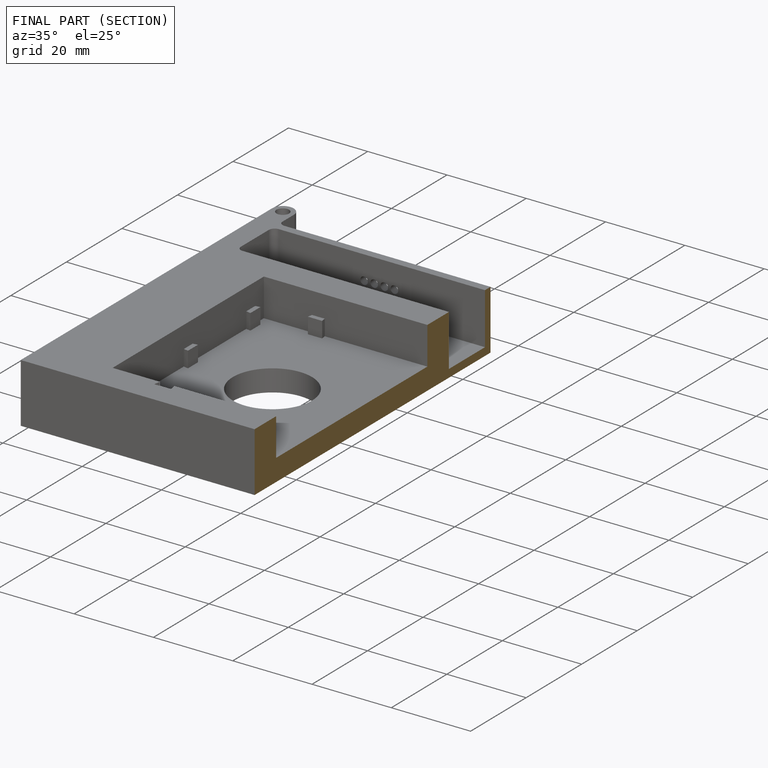
[diagram: finished part — half-section view (interior)]
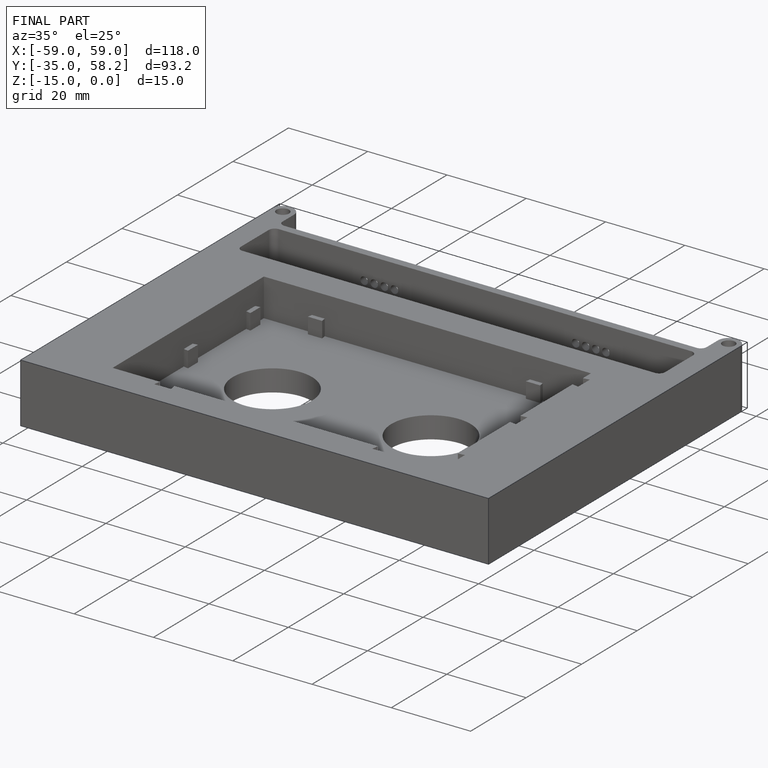
[diagram: finished part — iso view with bounding-box wireframe]
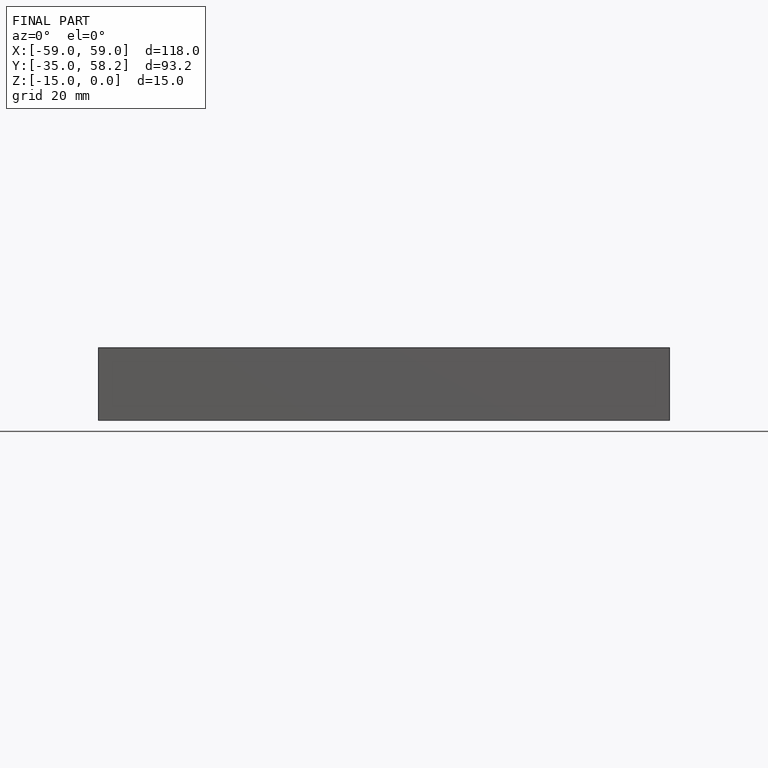
[diagram: finished part — front view with bounding-box wireframe]
